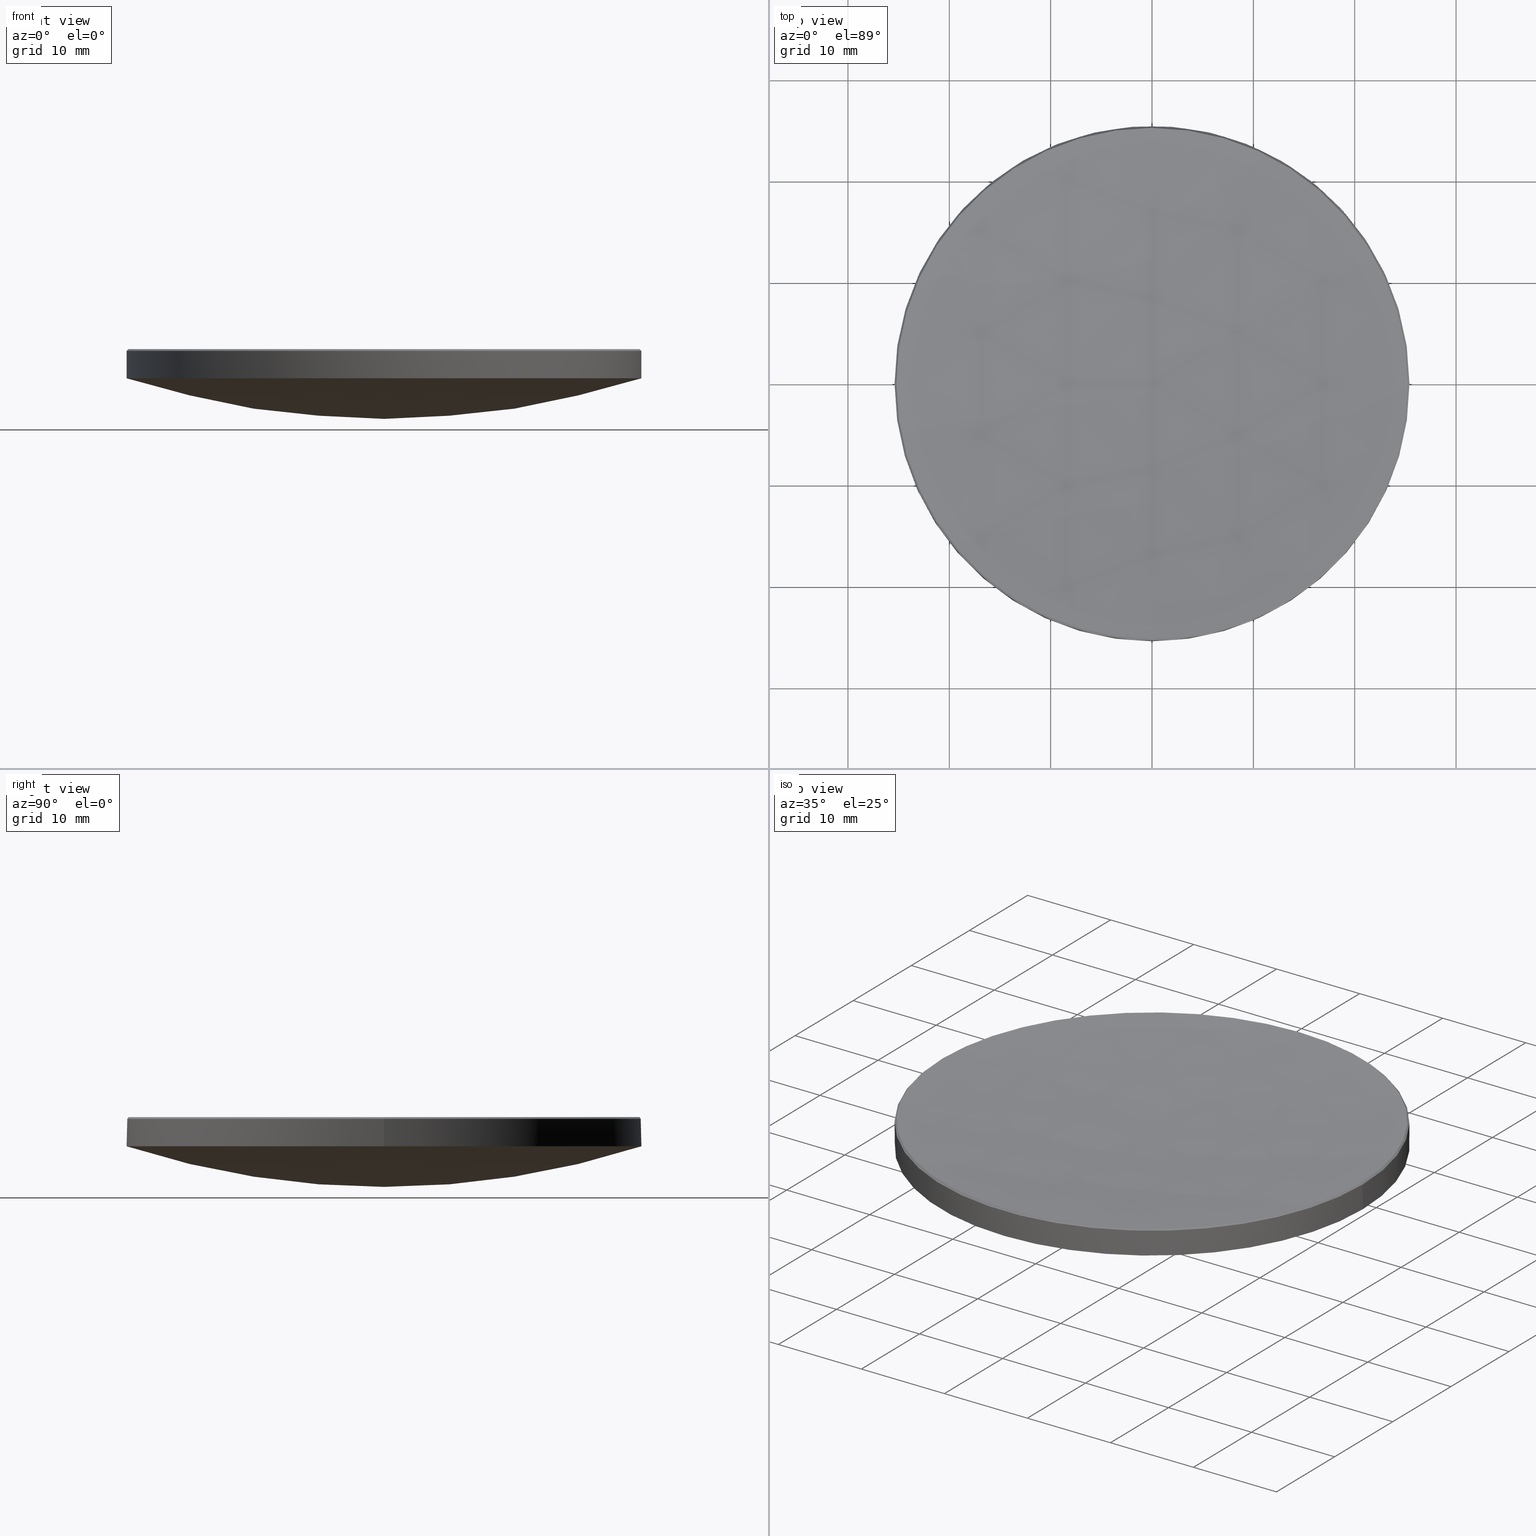
[diagram: canonical four-view strip — front | top / right | iso, engineering-drawing reading convention]
A machine part, canonical four-view strip (front | top / right | iso — engineering-drawing reading convention). The complete STEP part file that produces these views, byte-faithful:
ISO-10303-21;
HEADER;
FILE_DESCRIPTION (( 'STEP AP214' ),
    '1' );
FILE_NAME ('GLM1-050B-250-NIR.STEP',
    '2024-08-09T02:27:48',
    ( 'Windows User' ),
    ( 'P R C' ),
    'SwSTEP 2.0',
    'SolidWorks 2022',
    '' );
FILE_SCHEMA (( 'AUTOMOTIVE_DESIGN' ));
ENDSEC;

DATA;
#1 = DIRECTION ( 'NONE',  ( 1.000000000000000000, -0.000000000000000000, 0.000000000000000000 ) ) ;
#2 = CARTESIAN_POINT ( 'NONE',  ( 0.000000000000000000, 0.000000000000000000, 15.87963372536152562 ) ) ;
#3 =( NAMED_UNIT ( * ) PLANE_ANGLE_UNIT ( ) SI_UNIT ( $, .RADIAN. ) );
#4 = ADVANCED_FACE ( 'NONE', ( #142 ), #46, .T. ) ;
#5 = CARTESIAN_POINT ( 'NONE',  ( 0.000000000000000000, 1.375706981822179092E-14, 14.45958786863357837 ) ) ;
#6 = CONICAL_SURFACE ( 'NONE', #89, 25.22036627463847580, 0.7853981633973421417 ) ;
#7 = FACE_OUTER_BOUND ( 'NONE', #256, .T. ) ;
#8 = CIRCLE ( 'NONE', #58, 25.22036627463847935 ) ;
#9 = DIRECTION ( 'NONE',  ( -1.000000000000000000, 1.224646799147353207E-16, 0.000000000000000000 ) ) ;
#10 = VECTOR ( 'NONE', #69, 1000.000000000000000 ) ;
#11 = UNCERTAINTY_MEASURE_WITH_UNIT (LENGTH_MEASURE( 1.000000000000000082E-05 ), #164, 'distance_accuracy_value', 'NONE');
#12 = AXIS2_PLACEMENT_3D ( 'NONE', #33, #117, #119 ) ;
#13 = CIRCLE ( 'NONE', #248, 25.22036627463847935 ) ;
#14 = ADVANCED_FACE ( 'NONE', ( #123 ), #212, .T. ) ;
#15 = SURFACE_STYLE_FILL_AREA ( #233 ) ;
#16 = VERTEX_POINT ( 'NONE', #144 ) ;
#17 = PRODUCT_DEFINITION_CONTEXT ( 'detailed design', #186, 'design' ) ;
#18 = DIRECTION ( 'NONE',  ( 1.000000000000000000, 0.000000000000000000, 0.000000000000000000 ) ) ;
#19 = CARTESIAN_POINT ( 'NONE',  ( 25.39999999999999503, 3.110602869834276471E-15, 13.00000000000000000 ) ) ;
#20 = PRODUCT_DEFINITION_SHAPE ( 'NONE', 'NONE',  #276 ) ;
#21 = ORIENTED_EDGE ( 'NONE', *, *, #42, .F. ) ;
#22 = EDGE_CURVE ( 'NONE', #98, #88, #192, .T. ) ;
#23 = ORIENTED_EDGE ( 'NONE', *, *, #140, .F. ) ;
#24 = AXIS2_PLACEMENT_3D ( 'NONE', #51, #224, #96 ) ;
#25 = SPHERICAL_SURFACE ( 'NONE', #125, 82.54000000000000625 ) ;
#26 = VERTEX_POINT ( 'NONE', #19 ) ;
#27 = APPLICATION_CONTEXT ( 'automotive_design' ) ;
#28 = FACE_OUTER_BOUND ( 'NONE', #196, .T. ) ;
#29 = DIRECTION ( 'NONE',  ( 1.000000000000000000, 0.000000000000000000, 0.000000000000000000 ) ) ;
#30 = LINE ( 'NONE', #131, #72 ) ;
#31 = DIRECTION ( 'NONE',  ( -1.224646799147352961E-16, -1.000000000000000000, 0.000000000000000000 ) ) ;
#32 = DIRECTION ( 'NONE',  ( -0.000000000000000000, -0.000000000000000000, 1.000000000000000000 ) ) ;
#33 = CARTESIAN_POINT ( 'NONE',  ( 0.000000000000000000, 0.000000000000000000, 13.00000000000000000 ) ) ;
#34 = LINE ( 'NONE', #55, #141 ) ;
#35 = VERTEX_POINT ( 'NONE', #274 ) ;
#36 = ORIENTED_EDGE ( 'NONE', *, *, #140, .T. ) ;
#37 = ORIENTED_EDGE ( 'NONE', *, *, #188, .F. ) ;
#38 = AXIS2_PLACEMENT_3D ( 'NONE', #169, #242, #147 ) ;
#39 = UNCERTAINTY_MEASURE_WITH_UNIT (LENGTH_MEASURE( 1.000000000000000082E-05 ), #231, 'distance_accuracy_value', 'NONE');
#40 = CARTESIAN_POINT ( 'NONE',  ( 0.000000000000000000, 0.000000000000000000, 15.87963372536149720 ) ) ;
#41 = ORIENTED_EDGE ( 'NONE', *, *, #101, .T. ) ;
#42 = EDGE_CURVE ( 'NONE', #98, #16, #30, .T. ) ;
#43 = VERTEX_POINT ( 'NONE', #173 ) ;
#44 = CIRCLE ( 'NONE', #210, 224.6699999999999875 ) ;
#45 = EDGE_CURVE ( 'NONE', #88, #26, #113, .T. ) ;
#46 = SPHERICAL_SURFACE ( 'NONE', #154, 82.54000000000000625 ) ;
#47 = DIRECTION ( 'NONE',  ( 0.7071067811864724106, 8.659560562354013342E-17, -0.7071067811866226238 ) ) ;
#48 = CARTESIAN_POINT ( 'NONE',  ( 0.000000000000000000, 0.000000000000000000, 239.1295878686335641 ) ) ;
#49 = CARTESIAN_POINT ( 'NONE',  ( 0.000000000000000000, 0.000000000000000000, 239.1295878686335641 ) ) ;
#50 = LINE ( 'NONE', #133, #122 ) ;
#51 = CARTESIAN_POINT ( 'NONE',  ( 0.000000000000000000, 0.000000000000000000, 20.00000000000000000 ) ) ;
#52 = AXIS2_PLACEMENT_3D ( 'NONE', #71, #202, #157 ) ;
#53 = PRODUCT_RELATED_PRODUCT_CATEGORY ( 'part', '', ( #211 ) ) ;
#54 = DIRECTION ( 'NONE',  ( 1.000000000000000000, 0.000000000000000000, 0.000000000000000000 ) ) ;
#55 = CARTESIAN_POINT ( 'NONE',  ( -25.22036627463847580, 0.000000000000000000, 15.87963372536152562 ) ) ;
#56 = CARTESIAN_POINT ( 'NONE',  ( 0.000000000000000000, 0.000000000000000000, 91.53465222435252713 ) ) ;
#57 = AXIS2_PLACEMENT_3D ( 'NONE', #244, #243, #201 ) ;
#58 = AXIS2_PLACEMENT_3D ( 'NONE', #132, #74, #155 ) ;
#59 = ORIENTED_EDGE ( 'NONE', *, *, #42, .T. ) ;
#60 = ORIENTED_EDGE ( 'NONE', *, *, #87, .T. ) ;
#61 = CIRCLE ( 'NONE', #166, 25.39999999999999503 ) ;
#62 = VERTEX_POINT ( 'NONE', #151 ) ;
#63 = SURFACE_STYLE_USAGE ( .BOTH. , #273 ) ;
#64 = EDGE_CURVE ( 'NONE', #148, #35, #44, .T. ) ;
#65 = EDGE_LOOP ( 'NONE', ( #37, #232, #165, #278 ) ) ;
#66 = ORIENTED_EDGE ( 'NONE', *, *, #22, .F. ) ;
#67 = FACE_OUTER_BOUND ( 'NONE', #171, .T. ) ;
#68 = COLOUR_RGB ( '',1.000000000000000000, 1.000000000000000000, 1.000000000000000000 ) ;
#69 = DIRECTION ( 'NONE',  ( -0.000000000000000000, -0.000000000000000000, -1.000000000000000000 ) ) ;
#70 = DIRECTION ( 'NONE',  ( 0.000000000000000000, 0.000000000000000000, -1.000000000000000000 ) ) ;
#71 = CARTESIAN_POINT ( 'NONE',  ( 0.000000000000000000, 0.000000000000000000, 239.1295878686335641 ) ) ;
#72 = VECTOR ( 'NONE', #150, 1000.000000000000000 ) ;
#73 = ADVANCED_FACE ( 'NONE', ( #67 ), #92, .T. ) ;
#74 = DIRECTION ( 'NONE',  ( -0.000000000000000000, -0.000000000000000000, 1.000000000000000000 ) ) ;
#75 = CARTESIAN_POINT ( 'NONE',  ( 0.000000000000000000, 0.000000000000000000, 15.87963372536149720 ) ) ;
#76 = CARTESIAN_POINT ( 'NONE',  ( 0.000000000000000000, 5.054117340081126317E-15, 8.994652224352527980 ) ) ;
#77 = ORIENTED_EDGE ( 'NONE', *, *, #229, .T. ) ;
#78 = AXIS2_PLACEMENT_3D ( 'NONE', #180, #97, #114 ) ;
#79 = PRODUCT_CONTEXT ( 'NONE', #27, 'mechanical' ) ;
#80 = ORIENTED_EDGE ( 'NONE', *, *, #261, .T. ) ;
#81 = ORIENTED_EDGE ( 'NONE', *, *, #206, .F. ) ;
#82 = ADVANCED_FACE ( 'NONE', ( #259 ), #6, .T. ) ;
#83 = FACE_OUTER_BOUND ( 'NONE', #65, .T. ) ;
#84 = DIRECTION ( 'NONE',  ( 1.000000000000000000, 0.000000000000000000, 0.000000000000000000 ) ) ;
#85 = CIRCLE ( 'NONE', #138, 25.39999999999999503 ) ;
#86 = ORIENTED_EDGE ( 'NONE', *, *, #251, .T. ) ;
#87 = EDGE_CURVE ( 'NONE', #102, #88, #50, .T. ) ;
#88 = VERTEX_POINT ( 'NONE', #257 ) ;
#89 = AXIS2_PLACEMENT_3D ( 'NONE', #2, #70, #245 ) ;
#90 = CARTESIAN_POINT ( 'NONE',  ( 0.000000000000000000, 0.000000000000000000, 239.1295878686335641 ) ) ;
#91 = FILL_AREA_STYLE_COLOUR ( '', #68 ) ;
#92 = CYLINDRICAL_SURFACE ( 'NONE', #57, 25.39999999999999858 ) ;
#93 = DIRECTION ( 'NONE',  ( -0.000000000000000000, -0.000000000000000000, 1.000000000000000000 ) ) ;
#94 = SURFACE_SIDE_STYLE ('',( #205 ) ) ;
#95 = AXIS2_PLACEMENT_3D ( 'NONE', #90, #249, #115 ) ;
#96 = DIRECTION ( 'NONE',  ( -1.000000000000000000, 0.000000000000000000, 0.000000000000000000 ) ) ;
#97 = DIRECTION ( 'NONE',  ( 0.000000000000000000, 0.000000000000000000, -1.000000000000000000 ) ) ;
#98 = VERTEX_POINT ( 'NONE', #228 ) ;
#99 = ORIENTED_EDGE ( 'NONE', *, *, #246, .F. ) ;
#100 = ORIENTED_EDGE ( 'NONE', *, *, #87, .F. ) ;
#101 = EDGE_CURVE ( 'NONE', #16, #266, #281, .T. ) ;
#102 = VERTEX_POINT ( 'NONE', #223 ) ;
#103 = APPLICATION_PROTOCOL_DEFINITION ( 'draft international standard', 'automotive_design', 1998, #186 ) ;
#104 = ORIENTED_EDGE ( 'NONE', *, *, #240, .T. ) ;
#105 = ORIENTED_EDGE ( 'NONE', *, *, #45, .T. ) ;
#106 = ORIENTED_EDGE ( 'NONE', *, *, #246, .T. ) ;
#107 = COLOUR_RGB ( '',1.000000000000000000, 1.000000000000000000, 1.000000000000000000 ) ;
#108 = ADVANCED_FACE ( 'NONE', ( #28 ), #199, .F. ) ;
#109 = FILL_AREA_STYLE_COLOUR ( '', #107 ) ;
#110 = ORIENTED_EDGE ( 'NONE', *, *, #240, .F. ) ;
#111 = CARTESIAN_POINT ( 'NONE',  ( 0.000000000000000000, 0.000000000000000000, 91.53465222435252713 ) ) ;
#112 = CARTESIAN_POINT ( 'NONE',  ( 0.000000000000000000, 0.000000000000000000, 15.87963372536149720 ) ) ;
#113 = LINE ( 'NONE', #153, #10 ) ;
#114 = DIRECTION ( 'NONE',  ( 1.000000000000000000, 0.000000000000000000, 0.000000000000000000 ) ) ;
#115 = DIRECTION ( 'NONE',  ( 0.000000000000000000, 1.000000000000000000, 0.000000000000000000 ) ) ;
#116 = EDGE_CURVE ( 'NONE', #191, #266, #207, .T. ) ;
#117 = DIRECTION ( 'NONE',  ( -0.000000000000000000, -0.000000000000000000, 1.000000000000000000 ) ) ;
#118 = AXIS2_PLACEMENT_3D ( 'NONE', #112, #93, #200 ) ;
#119 = DIRECTION ( 'NONE',  ( 1.000000000000000000, 0.000000000000000000, 0.000000000000000000 ) ) ;
#120 = CIRCLE ( 'NONE', #209, 25.22036627463847935 ) ;
#121 = MECHANICAL_DESIGN_GEOMETRIC_PRESENTATION_REPRESENTATION (  '', ( #270 ), #172 ) ;
#122 = VECTOR ( 'NONE', #47, 1000.000000000000000 ) ;
#123 = FACE_OUTER_BOUND ( 'NONE', #190, .T. ) ;
#124 = CARTESIAN_POINT ( 'NONE',  ( 0.000000000000000000, 0.000000000000000000, 15.69999999999996376 ) ) ;
#125 = AXIS2_PLACEMENT_3D ( 'NONE', #149, #128, #279 ) ;
#126 = DIRECTION ( 'NONE',  ( -0.000000000000000000, -0.000000000000000000, 1.000000000000000000 ) ) ;
#127 = CARTESIAN_POINT ( 'NONE',  ( 0.000000000000000000, 0.000000000000000000, 15.87963372536152562 ) ) ;
#128 = DIRECTION ( 'NONE',  ( -1.000000000000000000, 0.000000000000000000, 0.000000000000000000 ) ) ;
#129 = ORIENTED_EDGE ( 'NONE', *, *, #195, .T. ) ;
#130 = CARTESIAN_POINT ( 'NONE',  ( 0.000000000000000000, 0.000000000000000000, 13.00000000000000000 ) ) ;
#131 = CARTESIAN_POINT ( 'NONE',  ( -25.39999999999999858, 0.000000000000000000, 20.00000000000000000 ) ) ;
#132 = CARTESIAN_POINT ( 'NONE',  ( 0.000000000000000000, 0.000000000000000000, 15.87963372536149720 ) ) ;
#133 = CARTESIAN_POINT ( 'NONE',  ( 25.22036627463847580, 3.088604083155986940E-15, 15.87963372536152562 ) ) ;
#134 = DIRECTION ( 'NONE',  ( 0.000000000000000000, 1.000000000000000000, 0.000000000000000000 ) ) ;
#135 = DIRECTION ( 'NONE',  ( -0.7071067811864724106, 0.000000000000000000, -0.7071067811866226238 ) ) ;
#136 = EDGE_CURVE ( 'NONE', #102, #35, #187, .T. ) ;
#137 = CLOSED_SHELL ( 'NONE', ( #14, #234, #267, #73, #219, #4, #108, #82 ) ) ;
#138 = AXIS2_PLACEMENT_3D ( 'NONE', #156, #236, #143 ) ;
#139 = AXIS2_PLACEMENT_3D ( 'NONE', #127, #253, #193 ) ;
#140 = EDGE_CURVE ( 'NONE', #62, #98, #34, .T. ) ;
#141 = VECTOR ( 'NONE', #135, 1000.000000000000000 ) ;
#142 = FACE_OUTER_BOUND ( 'NONE', #230, .T. ) ;
#143 = DIRECTION ( 'NONE',  ( 1.000000000000000000, 0.000000000000000000, 0.000000000000000000 ) ) ;
#144 = CARTESIAN_POINT ( 'NONE',  ( -25.39999999999999503, 0.000000000000000000, 13.00000000000000000 ) ) ;
#145 = VERTEX_POINT ( 'NONE', #181 ) ;
#146 = ORIENTED_EDGE ( 'NONE', *, *, #136, .T. ) ;
#147 = DIRECTION ( 'NONE',  ( 1.000000000000000000, 0.000000000000000000, 0.000000000000000000 ) ) ;
#148 = VERTEX_POINT ( 'NONE', #5 ) ;
#149 = CARTESIAN_POINT ( 'NONE',  ( 0.000000000000000000, 0.000000000000000000, 91.53465222435252713 ) ) ;
#150 = DIRECTION ( 'NONE',  ( -0.000000000000000000, -0.000000000000000000, -1.000000000000000000 ) ) ;
#151 = CARTESIAN_POINT ( 'NONE',  ( -25.22036627463847935, 0.000000000000000000, 15.87963372536149720 ) ) ;
#152 = FACE_OUTER_BOUND ( 'NONE', #215, .T. ) ;
#153 = CARTESIAN_POINT ( 'NONE',  ( 25.39999999999999858, 3.110602869834276865E-15, 20.00000000000000000 ) ) ;
#154 = AXIS2_PLACEMENT_3D ( 'NONE', #222, #198, #280 ) ;
#155 = DIRECTION ( 'NONE',  ( 1.000000000000000000, 0.000000000000000000, 0.000000000000000000 ) ) ;
#156 = CARTESIAN_POINT ( 'NONE',  ( 0.000000000000000000, 0.000000000000000000, 13.00000000000000000 ) ) ;
#157 = DIRECTION ( 'NONE',  ( -1.224646799147353207E-16, -1.000000000000000000, 0.000000000000000000 ) ) ;
#158 = AXIS2_PLACEMENT_3D ( 'NONE', #130, #32, #282 ) ;
#159 = EDGE_CURVE ( 'NONE', #88, #98, #227, .T. ) ;
#160 = AXIS2_PLACEMENT_3D ( 'NONE', #111, #9, #31 ) ;
#161 = ADVANCED_BREP_SHAPE_REPRESENTATION ( 'GLM1-050B-250-NIR', ( #204, #38 ), #203 ) ;
#162 = SHAPE_DEFINITION_REPRESENTATION ( #20, #161 ) ;
#163 = ORIENTED_EDGE ( 'NONE', *, *, #45, .F. ) ;
#164 =( LENGTH_UNIT ( ) NAMED_UNIT ( * ) SI_UNIT ( .MILLI., .METRE. ) );
#165 = ORIENTED_EDGE ( 'NONE', *, *, #101, .F. ) ;
#166 = AXIS2_PLACEMENT_3D ( 'NONE', #260, #250, #29 ) ;
#167 =( NAMED_UNIT ( * ) SI_UNIT ( $, .STERADIAN. ) SOLID_ANGLE_UNIT ( ) );
#168 = ORIENTED_EDGE ( 'NONE', *, *, #116, .F. ) ;
#169 = CARTESIAN_POINT ( 'NONE',  ( 0.000000000000000000, 0.000000000000000000, 0.000000000000000000 ) ) ;
#170 = ORIENTED_EDGE ( 'NONE', *, *, #251, .F. ) ;
#171 = EDGE_LOOP ( 'NONE', ( #218, #105, #86, #77, #21 ) ) ;
#172 =( GEOMETRIC_REPRESENTATION_CONTEXT ( 3 ) GLOBAL_UNCERTAINTY_ASSIGNED_CONTEXT ( ( #11 ) ) GLOBAL_UNIT_ASSIGNED_CONTEXT ( ( #164, #277, #214 ) ) REPRESENTATION_CONTEXT ( 'NONE', 'WORKASPACE' ) );
#173 = CARTESIAN_POINT ( 'NONE',  ( -3.088604083155972347E-15, -25.22036627463835501, 15.87963372536149720 ) ) ;
#174 = SURFACE_STYLE_USAGE ( .BOTH. , #94 ) ;
#175 = PRESENTATION_LAYER_ASSIGNMENT (  '', '', ( #270 ) ) ;
#176 = DIRECTION ( 'NONE',  ( 0.000000000000000000, 0.000000000000000000, -1.000000000000000000 ) ) ;
#177 = CYLINDRICAL_SURFACE ( 'NONE', #24, 25.39999999999999858 ) ;
#178 = PRESENTATION_STYLE_ASSIGNMENT (( #174 ) ) ;
#179 = AXIS2_PLACEMENT_3D ( 'NONE', #49, #262, #134 ) ;
#180 = CARTESIAN_POINT ( 'NONE',  ( 0.000000000000000000, 0.000000000000000000, 15.69999999999996376 ) ) ;
#181 = CARTESIAN_POINT ( 'NONE',  ( 0.000000000000000000, 25.39999999999999147, 12.99999999999999822 ) ) ;
#182 = ORIENTED_EDGE ( 'NONE', *, *, #136, .F. ) ;
#183 = ORIENTED_EDGE ( 'NONE', *, *, #206, .T. ) ;
#184 =( GEOMETRIC_REPRESENTATION_CONTEXT ( 3 ) GLOBAL_UNCERTAINTY_ASSIGNED_CONTEXT ( ( #213 ) ) GLOBAL_UNIT_ASSIGNED_CONTEXT ( ( #226, #3, #258 ) ) REPRESENTATION_CONTEXT ( 'NONE', 'WORKASPACE' ) );
#185 = PRODUCT_DEFINITION_FORMATION_WITH_SPECIFIED_SOURCE ( '�κ�', '', #211, .NOT_KNOWN. ) ;
#186 = APPLICATION_CONTEXT ( 'automotive_design' ) ;
#187 = CIRCLE ( 'NONE', #118, 25.22036627463847935 ) ;
#188 = EDGE_CURVE ( 'NONE', #191, #145, #241, .T. ) ;
#189 = AXIS2_PLACEMENT_3D ( 'NONE', #56, #1, #265 ) ;
#190 = EDGE_LOOP ( 'NONE', ( #182, #60, #66, #23, #237 ) ) ;
#191 = VERTEX_POINT ( 'NONE', #76 ) ;
#192 = CIRCLE ( 'NONE', #268, 25.39999999999999858 ) ;
#193 = DIRECTION ( 'NONE',  ( -1.000000000000000000, 0.000000000000000000, 0.000000000000000000 ) ) ;
#194 = CIRCLE ( 'NONE', #12, 25.39999999999999503 ) ;
#195 = EDGE_CURVE ( 'NONE', #148, #43, #263, .T. ) ;
#196 = EDGE_LOOP ( 'NONE', ( #254, #255, #80, #106 ) ) ;
#197 =( NAMED_UNIT ( * ) PLANE_ANGLE_UNIT ( ) SI_UNIT ( $, .RADIAN. ) );
#198 = DIRECTION ( 'NONE',  ( -1.000000000000000000, 0.000000000000000000, 0.000000000000000000 ) ) ;
#199 = SPHERICAL_SURFACE ( 'NONE', #95, 224.6699999999999875 ) ;
#200 = DIRECTION ( 'NONE',  ( 1.000000000000000000, 0.000000000000000000, 0.000000000000000000 ) ) ;
#201 = DIRECTION ( 'NONE',  ( -1.000000000000000000, 0.000000000000000000, 0.000000000000000000 ) ) ;
#202 = DIRECTION ( 'NONE',  ( -1.000000000000000000, 1.224646799147353207E-16, 0.000000000000000000 ) ) ;
#203 =( GEOMETRIC_REPRESENTATION_CONTEXT ( 3 ) GLOBAL_UNCERTAINTY_ASSIGNED_CONTEXT ( ( #39 ) ) GLOBAL_UNIT_ASSIGNED_CONTEXT ( ( #231, #197, #167 ) ) REPRESENTATION_CONTEXT ( 'NONE', 'WORKASPACE' ) );
#204 = MANIFOLD_SOLID_BREP ( '����1', #137 ) ;
#205 = SURFACE_STYLE_FILL_AREA ( #264 ) ;
#206 = EDGE_CURVE ( 'NONE', #266, #26, #194, .T. ) ;
#207 = CIRCLE ( 'NONE', #160, 82.54000000000000625 ) ;
#208 = SPHERICAL_SURFACE ( 'NONE', #179, 224.6699999999999875 ) ;
#209 = AXIS2_PLACEMENT_3D ( 'NONE', #75, #247, #54 ) ;
#210 = AXIS2_PLACEMENT_3D ( 'NONE', #48, #225, #176 ) ;
#211 = PRODUCT ( 'GLM1-050B-250-NIR', 'GLM1-050B-250-NIR', '', ( #79 ) ) ;
#212 = CONICAL_SURFACE ( 'NONE', #139, 25.22036627463847580, 0.7853981633973421417 ) ;
#213 = UNCERTAINTY_MEASURE_WITH_UNIT (LENGTH_MEASURE( 1.000000000000000082E-05 ), #226, 'distance_accuracy_value', 'NONE');
#214 =( NAMED_UNIT ( * ) SI_UNIT ( $, .STERADIAN. ) SOLID_ANGLE_UNIT ( ) );
#215 = EDGE_LOOP ( 'NONE', ( #220, #129, #104, #146 ) ) ;
#216 = DIRECTION ( 'NONE',  ( 0.000000000000000000, 0.000000000000000000, -1.000000000000000000 ) ) ;
#217 = CARTESIAN_POINT ( 'NONE',  ( -3.110602869834276076E-15, -25.39999999999999147, 12.99999999999999822 ) ) ;
#218 = ORIENTED_EDGE ( 'NONE', *, *, #22, .T. ) ;
#219 = ADVANCED_FACE ( 'NONE', ( #7 ), #177, .T. ) ;
#220 = ORIENTED_EDGE ( 'NONE', *, *, #64, .F. ) ;
#221 = STYLED_ITEM ( 'NONE', ( #178 ), #204 ) ;
#222 = CARTESIAN_POINT ( 'NONE',  ( 0.000000000000000000, 0.000000000000000000, 91.53465222435252713 ) ) ;
#223 = CARTESIAN_POINT ( 'NONE',  ( 25.22036627463847935, 3.099603476495131903E-15, 15.87963372536149720 ) ) ;
#224 = DIRECTION ( 'NONE',  ( -0.000000000000000000, -0.000000000000000000, -1.000000000000000000 ) ) ;
#225 = DIRECTION ( 'NONE',  ( 1.000000000000000000, 0.000000000000000000, 0.000000000000000000 ) ) ;
#226 =( LENGTH_UNIT ( ) NAMED_UNIT ( * ) SI_UNIT ( .MILLI., .METRE. ) );
#227 = CIRCLE ( 'NONE', #78, 25.39999999999999858 ) ;
#228 = CARTESIAN_POINT ( 'NONE',  ( -25.39999999999999858, 0.000000000000000000, 15.69999999999996376 ) ) ;
#229 = EDGE_CURVE ( 'NONE', #145, #16, #61, .T. ) ;
#230 = EDGE_LOOP ( 'NONE', ( #168, #239, #170, #81 ) ) ;
#231 =( LENGTH_UNIT ( ) NAMED_UNIT ( * ) SI_UNIT ( .MILLI., .METRE. ) );
#232 = ORIENTED_EDGE ( 'NONE', *, *, #116, .T. ) ;
#233 = FILL_AREA_STYLE ('',( #109 ) ) ;
#234 = ADVANCED_FACE ( 'NONE', ( #152 ), #208, .F. ) ;
#235 = ORIENTED_EDGE ( 'NONE', *, *, #159, .F. ) ;
#236 = DIRECTION ( 'NONE',  ( -0.000000000000000000, -0.000000000000000000, 1.000000000000000000 ) ) ;
#237 = ORIENTED_EDGE ( 'NONE', *, *, #261, .F. ) ;
#238 = PRESENTATION_STYLE_ASSIGNMENT (( #63 ) ) ;
#239 = ORIENTED_EDGE ( 'NONE', *, *, #188, .T. ) ;
#240 = EDGE_CURVE ( 'NONE', #43, #102, #8, .T. ) ;
#241 = CIRCLE ( 'NONE', #189, 82.54000000000000625 ) ;
#242 = DIRECTION ( 'NONE',  ( 0.000000000000000000, 0.000000000000000000, 1.000000000000000000 ) ) ;
#243 = DIRECTION ( 'NONE',  ( -0.000000000000000000, -0.000000000000000000, -1.000000000000000000 ) ) ;
#244 = CARTESIAN_POINT ( 'NONE',  ( 0.000000000000000000, 0.000000000000000000, 20.00000000000000000 ) ) ;
#245 = DIRECTION ( 'NONE',  ( -1.000000000000000000, 0.000000000000000000, 0.000000000000000000 ) ) ;
#246 = EDGE_CURVE ( 'NONE', #62, #43, #120, .T. ) ;
#247 = DIRECTION ( 'NONE',  ( -0.000000000000000000, -0.000000000000000000, 1.000000000000000000 ) ) ;
#248 = AXIS2_PLACEMENT_3D ( 'NONE', #40, #126, #18 ) ;
#249 = DIRECTION ( 'NONE',  ( -1.000000000000000000, 0.000000000000000000, 0.000000000000000000 ) ) ;
#250 = DIRECTION ( 'NONE',  ( -0.000000000000000000, -0.000000000000000000, 1.000000000000000000 ) ) ;
#251 = EDGE_CURVE ( 'NONE', #26, #145, #85, .T. ) ;
#252 = PRESENTATION_LAYER_ASSIGNMENT (  '', '', ( #221 ) ) ;
#253 = DIRECTION ( 'NONE',  ( 0.000000000000000000, 0.000000000000000000, -1.000000000000000000 ) ) ;
#254 = ORIENTED_EDGE ( 'NONE', *, *, #195, .F. ) ;
#255 = ORIENTED_EDGE ( 'NONE', *, *, #64, .T. ) ;
#256 = EDGE_LOOP ( 'NONE', ( #163, #275, #59, #41, #183 ) ) ;
#257 = CARTESIAN_POINT ( 'NONE',  ( 25.39999999999999858, 3.110602869834276865E-15, 15.69999999999996376 ) ) ;
#258 =( NAMED_UNIT ( * ) SI_UNIT ( $, .STERADIAN. ) SOLID_ANGLE_UNIT ( ) );
#259 = FACE_OUTER_BOUND ( 'NONE', #272, .T. ) ;
#260 = CARTESIAN_POINT ( 'NONE',  ( 0.000000000000000000, 0.000000000000000000, 13.00000000000000000 ) ) ;
#261 = EDGE_CURVE ( 'NONE', #35, #62, #13, .T. ) ;
#262 = DIRECTION ( 'NONE',  ( -1.000000000000000000, 0.000000000000000000, 0.000000000000000000 ) ) ;
#263 = CIRCLE ( 'NONE', #52, 224.6699999999999875 ) ;
#264 = FILL_AREA_STYLE ('',( #91 ) ) ;
#265 = DIRECTION ( 'NONE',  ( 0.000000000000000000, 0.000000000000000000, -1.000000000000000000 ) ) ;
#266 = VERTEX_POINT ( 'NONE', #217 ) ;
#267 = ADVANCED_FACE ( 'NONE', ( #83 ), #25, .T. ) ;
#268 = AXIS2_PLACEMENT_3D ( 'NONE', #124, #216, #84 ) ;
#269 = MECHANICAL_DESIGN_GEOMETRIC_PRESENTATION_REPRESENTATION (  '', ( #221 ), #184 ) ;
#270 = STYLED_ITEM ( 'NONE', ( #238 ), #161 ) ;
#271 = APPLICATION_PROTOCOL_DEFINITION ( 'draft international standard', 'automotive_design', 1998, #27 ) ;
#272 = EDGE_LOOP ( 'NONE', ( #100, #110, #99, #36, #235 ) ) ;
#273 = SURFACE_SIDE_STYLE ('',( #15 ) ) ;
#274 = CARTESIAN_POINT ( 'NONE',  ( 0.000000000000000000, 25.22036627463835501, 15.87963372536149720 ) ) ;
#275 = ORIENTED_EDGE ( 'NONE', *, *, #159, .T. ) ;
#276 = PRODUCT_DEFINITION ( 'δ֪', '', #185, #17 ) ;
#277 =( NAMED_UNIT ( * ) PLANE_ANGLE_UNIT ( ) SI_UNIT ( $, .RADIAN. ) );
#278 = ORIENTED_EDGE ( 'NONE', *, *, #229, .F. ) ;
#279 = DIRECTION ( 'NONE',  ( 0.000000000000000000, 1.000000000000000000, 0.000000000000000000 ) ) ;
#280 = DIRECTION ( 'NONE',  ( 0.000000000000000000, 1.000000000000000000, 0.000000000000000000 ) ) ;
#281 = CIRCLE ( 'NONE', #158, 25.39999999999999503 ) ;
#282 = DIRECTION ( 'NONE',  ( 1.000000000000000000, 0.000000000000000000, 0.000000000000000000 ) ) ;
ENDSEC;
END-ISO-10303-21;
